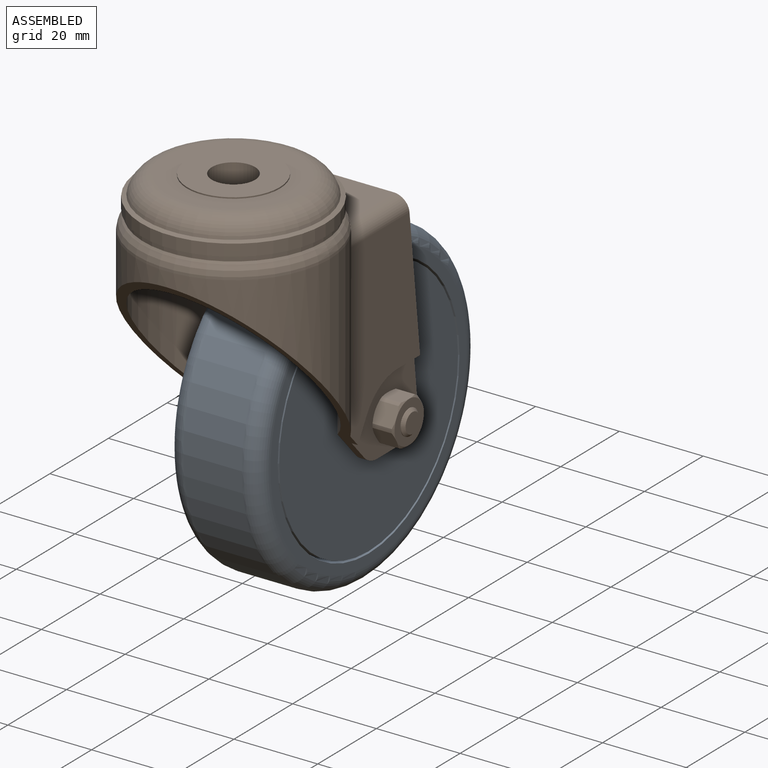
[diagram: assembled view]
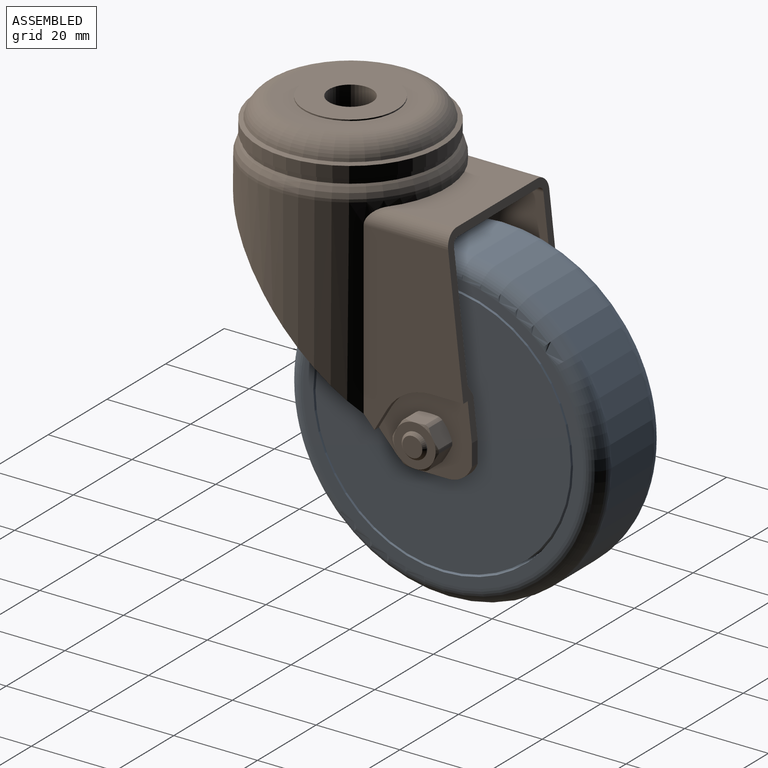
[diagram: assembled view, second angle]
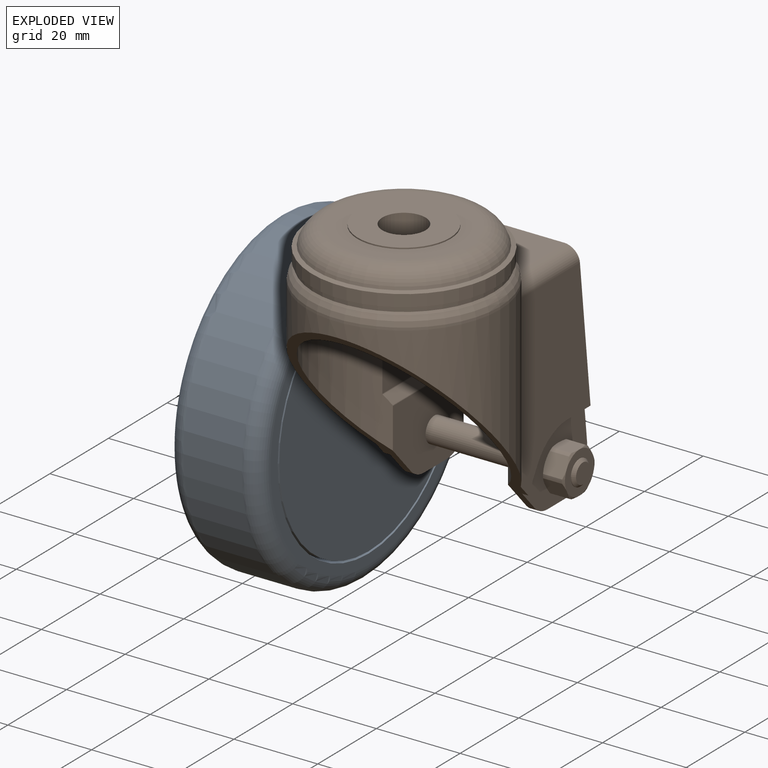
[diagram: exploded view]
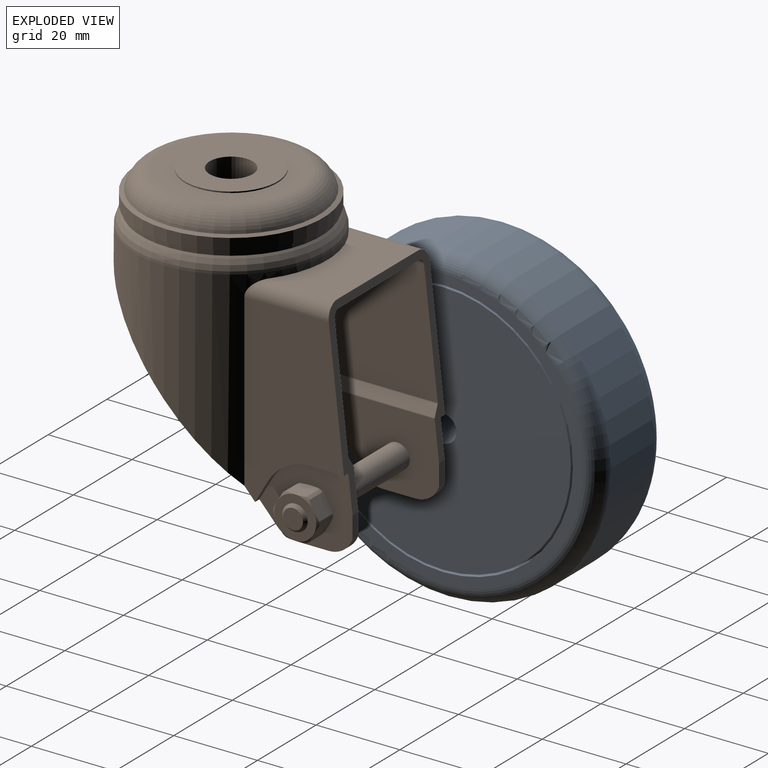
[diagram: exploded view, second angle]
ASSEMBLY  parts=2 mates=3
PART A: 14 faces, bbox 22x81.2x81.2 mm
  f0: cylinder r=3.17mm len=22mm, axis (-1,0,0), area 438.9mm2, adj f12,f13
  f1: cylinder r=30.5mm len=61mm, axis (-1,0,0), area 1916.4mm2, adj f8,f13
  f2: cylinder r=30.5mm len=61mm, axis (1,0,0), area 1916.4mm2, adj f9,f12
  f3: cylinder r=31mm len=62mm, axis (-1,0,0), area 1947.8mm2, adj f8,f11
  f4: torus R=33.5mm, axis (-1,0,0), area 1423.1mm2, adj f5,f11
  f5: cylinder r=37.5mm len=75mm, axis (-1,0,0), area 3298.7mm2, adj f4,f6
  f6: torus R=33.5mm, axis (-1,0,0), area 1423.1mm2, adj f5,f10
  f7: cylinder r=31mm len=62mm, axis (-1,0,0), area 1947.8mm2, adj f9,f10
  f8: plane 62x62mm, normal (-1,0,0), area 96.6mm2, adj f1,f3
  f9: plane 62x62mm, normal (1,0,0), area 96.6mm2, adj f2,f7
  f10: plane 67x67mm, normal (1,0,0), area 506.6mm2, adj f6,f7
  f11: plane 67x67mm, normal (-1,0,0), area 506.6mm2, adj f3,f4
  f12: plane 61x61mm, normal (1,0,0), area 2890.8mm2, adj f0,f2
  f13: plane 61x61mm, normal (-1,0,0), area 2890.8mm2, adj f0,f1
PART B: 99 faces, bbox 51x66.1x68.7 mm
  f0: torus R=18.51mm, axis (0,0,1), area 535.7mm2, adj f6,f8
  f1: cylinder r=5.16mm len=10.32mm, axis (0,0,1), area 202.6mm2, adj f95,f98
  f2: cylinder r=11.07mm len=22.14mm, axis (0,0,1), area 20.9mm2, adj f97,f98
  f3: torus R=15.78mm, axis (0,0,1), area 863.8mm2, adj f4,f97
  f4: cone r=21.49mm half-angle=71.1deg, axis (0,0,-1), area 145.6mm2, adj f3,f5
  f5: cylinder r=22mm len=44mm, axis (0,0,1), area 394mm2, adj f4,f96
  f6: cylinder r=21.5mm len=43mm, axis (0,0,1), area 164.8mm2, adj f0,f96
  f7: cylinder r=10.5mm len=21mm, axis (0,0,1), area 401.8mm2, adj f72,f95
  f8: cylinder r=23mm len=46mm, axis (0,0,-1), area 2229.3mm2, adj f0,f62,f71,f83,f86,f93,f94
  f9: cylinder r=21mm len=46.36mm, axis (0,0,-1), area 2272mm2, adj f62,f72,f73,f74,f75,f76,f77,f78
  f10: cylinder r=3mm len=27.5mm, axis (1,0,0), area 518.4mm2, adj f73,f92
  f11: cone r=1.5mm half-angle=45deg, axis (-1,0,0), area 15mm2, adj f12,f13
  f12: cylinder r=3mm len=6mm, axis (1,0,0), area 3.3mm2, adj f11,f56
  f13: plane 4.75x4.75mm, normal (1,0,0), area 17.7mm2, adj f11
  f14: plane 4.38x4.31mm, normal (0,0.87,0.5), area 18.3mm2, adj f15,f16,f25,f28,f33
  f15: cone r=2.76mm half-angle=60deg, axis (1,0,0), area 1.9mm2, adj f14,f16,f17,f30
  f16: cylinder r=5.53mm len=3.7mm, axis (1,0,0), area 3.4mm2, adj f14,f15,f17,f33
  f17: plane 4.38x4.31mm, normal (0,0.87,-0.5), area 18.3mm2, adj f15,f16,f18,f19,f33
  f18: cone r=2.76mm half-angle=60deg, axis (1,0,0), area 1.9mm2, adj f17,f19,f20,f30
  f19: cylinder r=5.53mm len=3.7mm, axis (1,0,0), area 3.4mm2, adj f17,f18,f20,f33
  f20: plane 5.01x4.31mm, normal (0,0,-1), area 18.3mm2, adj f18,f19,f21,f22,f33
  f21: cone r=2.76mm half-angle=60deg, axis (1,0,0), area 1.9mm2, adj f20,f22,f23,f30
  f22: cylinder r=5.53mm len=3.7mm, axis (1,0,0), area 3.4mm2, adj f20,f21,f23,f33
  f23: plane 4.38x4.31mm, normal (0,-0.87,-0.5), area 18.3mm2, adj f21,f22,f24,f26,f33
  f24: cone r=2.76mm half-angle=60deg, axis (1,0,0), area 1.9mm2, adj f23,f26,f27,f30
  f25: cylinder r=5.53mm len=3.7mm, axis (1,0,0), area 3.4mm2, adj f14,f28,f29,f33
  f26: cylinder r=5.53mm len=3.7mm, axis (1,0,0), area 3.4mm2, adj f23,f24,f27,f33
  f27: plane 4.38x4.31mm, normal (0,-0.87,0.5), area 18.3mm2, adj f24,f26,f31,f32,f33
  f28: cone r=2.76mm half-angle=60deg, axis (1,0,0), area 1.9mm2, adj f14,f25,f29,f30
  f29: plane 5.01x4.31mm, normal (0,0,1), area 18.3mm2, adj f25,f28,f31,f32,f33
  f30: plane 10x10mm, normal (-1,0,0), area 78.5mm2, adj f15,f18,f21,f24,f28,f31
  f31: cone r=2.76mm half-angle=60deg, axis (1,0,0), area 1.9mm2, adj f27,f29,f30,f32
  f32: cylinder r=5.53mm len=3.7mm, axis (1,0,0), area 3.4mm2, adj f27,f29,f31,f33
  f33: plane 22.23x18mm, normal (-1,0,0), area 237.6mm2, adj f14,f16,f17,f19,f20,f22,f23,f25
  f34: plane 5.51x4.38mm, normal (0,0.87,0.5), area 23.5mm2, adj f35,f36,f37,f38,f52,f54
  f35: cone r=2.76mm half-angle=60deg, axis (1,0,0), area 1.9mm2, adj f34,f37,f39,f68
  f36: cone r=2.76mm half-angle=60deg, axis (1,0,0), area 1.9mm2, adj f34,f54,f55,f68
  f37: cylinder r=5.53mm len=4.59mm, axis (1,0,0), area 4.3mm2, adj f34,f35,f38,f39
  f38: cone r=2.76mm half-angle=60deg, axis (-1,0,0), area 1.9mm2, adj f34,f37,f39,f56
  f39: plane 5.51x4.38mm, normal (0,0.87,-0.5), area 23.5mm2, adj f35,f37,f38,f40,f41,f42
  f40: cone r=2.76mm half-angle=60deg, axis (1,0,0), area 1.9mm2, adj f39,f41,f43,f68
  f41: cylinder r=5.53mm len=4.59mm, axis (1,0,0), area 4.3mm2, adj f39,f40,f42,f43
  f42: cone r=2.76mm half-angle=60deg, axis (-1,0,0), area 1.9mm2, adj f39,f41,f43,f56
  f43: plane 5.51x5.01mm, normal (0,0,-1), area 23.5mm2, adj f40,f41,f42,f44,f45,f46
  f44: cone r=2.76mm half-angle=60deg, axis (1,0,0), area 1.9mm2, adj f43,f45,f47,f68
  f45: cylinder r=5.53mm len=4.59mm, axis (1,0,0), area 4.3mm2, adj f43,f44,f46,f47
  f46: cone r=2.76mm half-angle=60deg, axis (-1,0,0), area 1.9mm2, adj f43,f45,f47,f56
  f47: plane 5.51x4.38mm, normal (0,-0.87,-0.5), area 23.5mm2, adj f44,f45,f46,f48,f49,f50
  f48: cone r=2.76mm half-angle=60deg, axis (1,0,0), area 1.9mm2, adj f47,f49,f51,f68
  f49: cylinder r=5.53mm len=4.59mm, axis (1,0,0), area 4.3mm2, adj f47,f48,f50,f51
  f50: cone r=2.76mm half-angle=60deg, axis (-1,0,0), area 1.9mm2, adj f47,f49,f51,f56
  f51: plane 5.51x4.38mm, normal (0,-0.87,0.5), area 23.5mm2, adj f48,f49,f50,f53,f57,f58
  f52: cone r=2.76mm half-angle=60deg, axis (-1,0,0), area 1.9mm2, adj f34,f54,f55,f56
  f53: cone r=2.76mm half-angle=60deg, axis (-1,0,0), area 1.9mm2, adj f51,f55,f56,f58
  f54: cylinder r=5.53mm len=4.59mm, axis (1,0,0), area 4.3mm2, adj f34,f36,f52,f55
  f55: plane 5.51x5.01mm, normal (0,0,1), area 23.5mm2, adj f36,f52,f53,f54,f57,f58
  f56: plane 10x10mm, normal (1,0,0), area 50.3mm2, adj f12,f38,f42,f46,f50,f52,f53
  f57: cone r=2.76mm half-angle=60deg, axis (1,0,0), area 1.9mm2, adj f51,f55,f58,f68
  f58: cylinder r=5.53mm len=4.59mm, axis (1,0,0), area 4.3mm2, adj f51,f53,f55,f57
  f59: plane 5.3x3.07mm, normal (0,0.87,-0.5), area 9.2mm2, adj f33,f61,f62,f83
  f60: plane 7.78x1.5mm, normal (0,0,-1), area 11.7mm2, adj f33,f61,f79,f83
  f61: cylinder r=12.01mm len=10.39mm, axis (-1,0,0), area 18.8mm2, adj f33,f59,f60,f83
  f62: plane 50.96x47.19mm, normal (0,-0.74,-0.67), area 357.7mm2, adj f8,f9,f33,f59,f63,f65,f68,f70
  f63: cylinder r=6mm len=4.45mm, axis (-1,0,0), area 10mm2, adj f33,f62,f64,f92
  f64: plane 7.82x2mm, normal (0,0,-1), area 15.6mm2, adj f33,f63,f81,f92
  f65: plane 5.3x3.07mm, normal (0,0.87,-0.5), area 9.2mm2, adj f62,f67,f68,f71
  f66: plane 7.78x1.5mm, normal (0,0,-1), area 11.7mm2, adj f67,f68,f71,f79
  f67: cylinder r=12.01mm len=10.39mm, axis (-1,0,0), area 18.8mm2, adj f65,f66,f68,f71
  f68: plane 22.23x18mm, normal (1,0,0), area 245mm2, adj f35,f36,f40,f44,f48,f57,f62,f65
  f69: plane 7.82x2mm, normal (0,0,-1), area 15.6mm2, adj f68,f70,f73,f80
  f70: cylinder r=6mm len=4.45mm, axis (-1,0,0), area 10mm2, adj f62,f68,f69,f73
  f71: plane 43.56x23.8mm, normal (1,0,0), area 779.1mm2, adj f8,f62,f65,f66,f67,f79,f93
  f72: plane 42x42mm, normal (0,0,-1), area 1039.1mm2, adj f7,f9
  f73: plane 24.13x18.41mm, normal (-1,0,0), area 368.8mm2, adj f9,f10,f62,f69,f70,f74,f79,f80
  f74: cylinder r=0.5mm len=23.15mm, axis (0,1,0), area 6mm2, adj f9,f73,f75,f79
  f75: plane 24.48x2.42mm, normal (-0.87,0,0.5), area 64.5mm2, adj f9,f74,f76,f79
  f76: cylinder r=0.5mm len=24.23mm, axis (0,1,0), area 6.3mm2, adj f9,f75,f77,f79
  f77: plane 28.98x24.2mm, normal (-1,0,0), area 654.2mm2, adj f9,f76,f78,f79
  f78: cylinder r=1.5mm len=20.95mm, axis (0,1,0), area 47.5mm2, adj f9,f77,f79,f82
  f79: plane 44.75x34.67mm, normal (0,0.99,0.11), area 242.2mm2, adj f33,f60,f66,f68,f71,f73,f74,f75
  f80: cylinder r=6mm len=5.68mm, axis (-1,0,0), area 14.9mm2, adj f68,f69,f73,f84
  f81: cylinder r=6mm len=5.68mm, axis (-1,0,0), area 14.9mm2, adj f33,f64,f85,f92
  f82: plane 27.5x19.35mm, normal (0,0,-1), area 435.5mm2, adj f9,f78,f79,f87
  f83: plane 43.56x23.8mm, normal (-1,0,0), area 779.1mm2, adj f8,f59,f60,f61,f62,f79,f86
  f84: plane 5.09x2mm, normal (0,1,0), area 10.2mm2, adj f68,f73,f79,f80
  f85: plane 5.09x2mm, normal (0,1,0), area 10.2mm2, adj f33,f79,f81,f92
  f86: cylinder r=3.5mm len=20.18mm, axis (0,1,0), area 101mm2, adj f8,f79,f83,f94
  f87: cylinder r=1.5mm len=20.95mm, axis (0,1,0), area 47.5mm2, adj f9,f79,f82,f88
  f88: plane 28.98x24.2mm, normal (1,0,0), area 654.2mm2, adj f9,f79,f87,f89
  f89: cylinder r=0.5mm len=24.23mm, axis (0,1,0), area 6.3mm2, adj f9,f79,f88,f90
  f90: plane 24.48x2.42mm, normal (0.87,0,0.5), area 64.5mm2, adj f9,f79,f89,f91
  f91: cylinder r=0.5mm len=23.15mm, axis (0,1,0), area 6mm2, adj f9,f79,f90,f92
  f92: plane 24.13x18.41mm, normal (1,0,0), area 368.8mm2, adj f9,f10,f62,f63,f64,f79,f81,f85
  f93: cylinder r=3.5mm len=20.18mm, axis (0,1,0), area 101mm2, adj f8,f71,f79,f94
  f94: plane 27.5x16.56mm, normal (0,0,1), area 369.9mm2, adj f8,f79,f86,f93
  f95: plane 21x21mm, normal (0,0,-1), area 262.7mm2, adj f1,f7
  f96: plane 44x44mm, normal (0,0,-1), area 68.3mm2, adj f5,f6
  f97: plane 31.56x31.56mm, normal (0,0,1), area 397.3mm2, adj f2,f3
  f98: plane 22.14x22.14mm, normal (0,0,1), area 301.3mm2, adj f1,f2
PLACE A t=(-422.9,-275.07,-235.49)mm
PLACE B t=(-423.15,-275.07,-235.49)mm
MATE slider A.f0 <-> B.f10  axis (-1,0,0) through (40.89,50.35,24.15)mm
MATE planar A.f0 <-> B.f10  axis (-1,0,0) through (40.89,50.35,24.15)mm
MATE cylindrical A.f0 <-> B.f10  axis (1,0,0) through (62.89,50.35,24.15)mm
